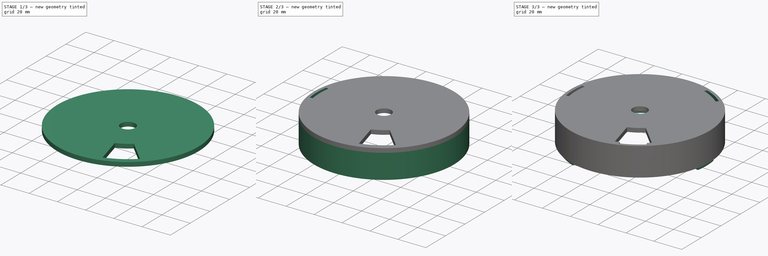
[diagram: build sequence overview — one tinted view per stage of 3, left to right]
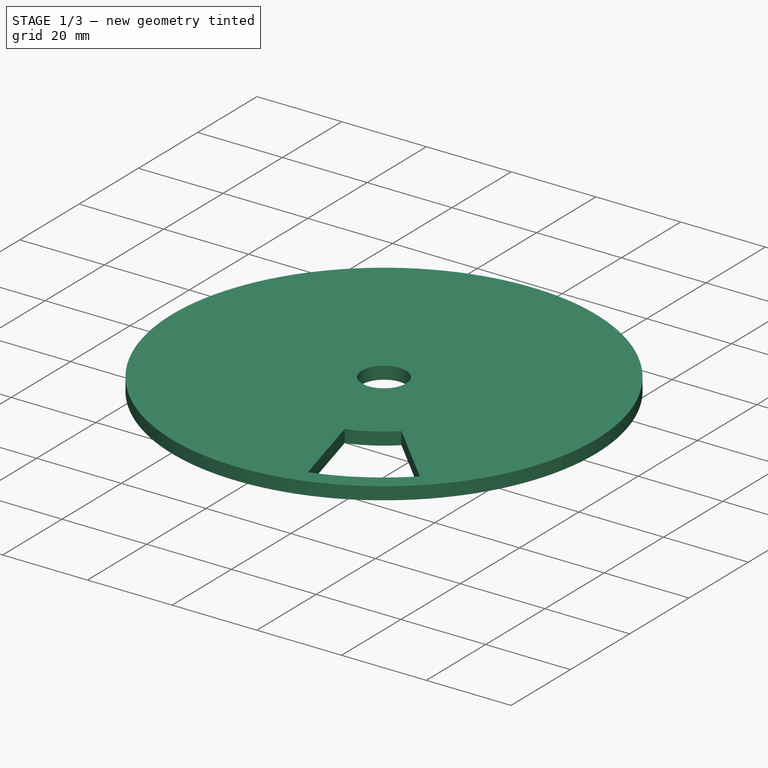
[diagram: stage 1 of 3 — iso view after this stage's code; geometry added in this stage tinted green]
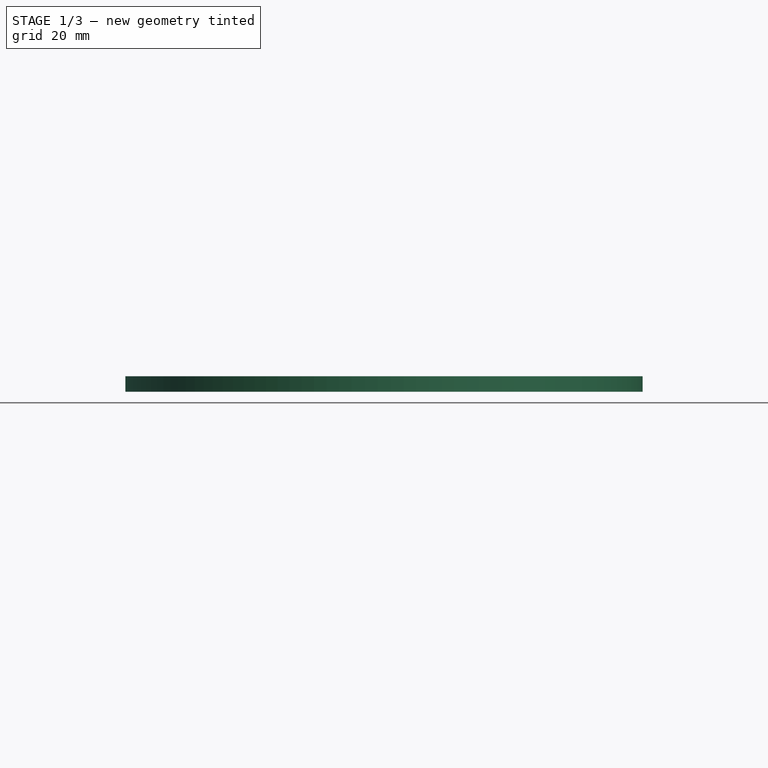
[diagram: stage 1 of 3 — front view after this stage's code; geometry added in this stage tinted green]
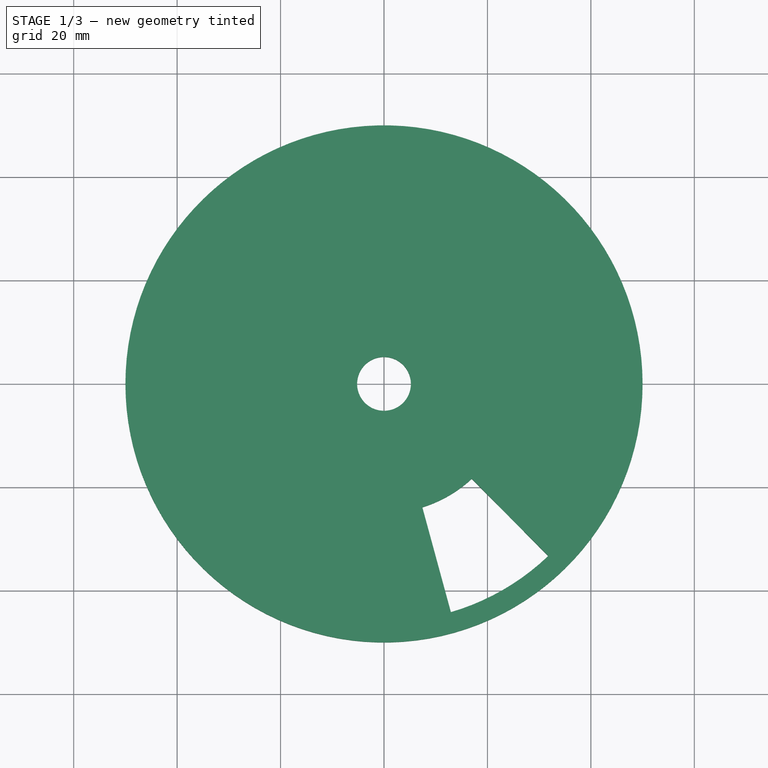
[diagram: stage 1 of 3 — top view after this stage's code; geometry added in this stage tinted green]
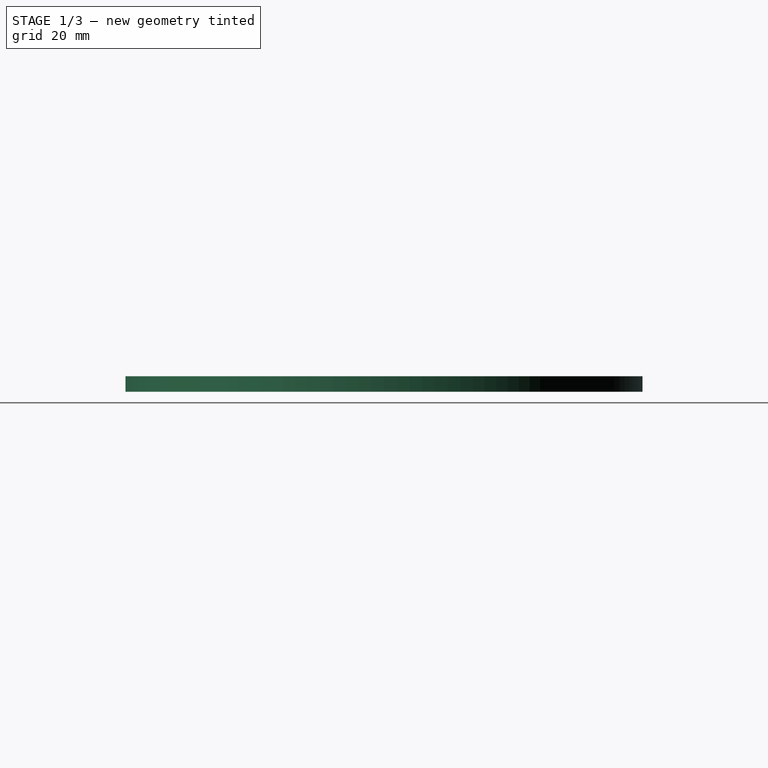
[diagram: stage 1 of 3 — right view after this stage's code; geometry added in this stage tinted green]
FCSTD DOCUMENT  (FreeCAD 0.20R29603 (Git))
Label: Section2
License: All rights reserved
LicenseURL: http://en.wikipedia.org/wiki/All_rights_reserved
objects: Sketcher::SketchObject×6, PartDesign::Pad×3, PartDesign::Plane×3, PartDesign::Pocket×3, PartDesign::PolarPattern×2, PartDesign::Body×1
note: 24 computed .brp shape members not serialized (recipe doc carries the construction recipe); baked Part::Feature solids carry a one-line shape summary decoded from their .brp

FEATURE [Sketcher::SketchObject] Sketch
  FullyConstrained = true
  MapMode = 5
  Support = -> [XY_Plane]
  sketch-geometry (1):
    g0: Circle CenterX=0 CenterY=0 CenterZ=0 NormalX=0 NormalY=0 NormalZ=1 AngleXU=0 Radius=50
  constraints (2):
    c: Coincident(g0,g-1)
    c: Diameter(g0) = 100
FEATURE [PartDesign::Pad] Pad
  Direction = (0,0,1)
  Length = 3
  Length2 = 10
  Profile = -> Sketch
  ReferenceAxis = -> Sketch [N_Axis]
  Type = 0
FEATURE [PartDesign::Plane] DatumPlane
  AttachmentOffset = pos=(0,0,11.5) rot=(0,0,1;0rad)
  Length = 60
  MapMode = 5
  Placement = pos=(11.5,-2.6e-15,2.6e-15) rot=(0.57735,0.57735,0.57735;2.0944rad)
  ResizeMode = 0
  Support = -> [YZ_Plane]
  Width = 60
FEATURE [PartDesign::Plane] DatumPlane001
  AttachmentOffset = pos=(0,0,3) rot=(0,0,1;0rad)
  Length = 85.0765
  MapMode = 5
  Placement = pos=(0,0,3) rot=(0,0,1;0rad)
  ResizeMode = 0
  Support = -> [XY_Plane]
  Width = 62.0825
FEATURE [Sketcher::SketchObject] Sketch004
  FullyConstrained = true
  MapMode = 5
  Placement = pos=(0,0,3) rot=(0,0,1;0rad)
  Support = -> [DatumPlane001]
  sketch-geometry (1):
    g0: Circle CenterX=0 CenterY=0 CenterZ=0 NormalX=0 NormalY=0 NormalZ=1 AngleXU=0 Radius=5.2
  constraints (2):
    c: Coincident(g0,g-1)
    c: Diameter(g0) = 10.4
FEATURE [PartDesign::Pocket] Pocket001
  BaseFeature = -> Pad
  Direction = (0,0,-1)
  Length = 5
  Length2 = 5
  Profile = -> Sketch004
  ReferenceAxis = -> Sketch004 [N_Axis]
  Type = 1
FEATURE [Sketcher::SketchObject] Sketch005
  FullyConstrained = false
  MapMode = 5
  Support = -> [XY_Plane]
  sketch-geometry (8):
    g0: ArcOfCircle CenterX=0 CenterY=0 CenterZ=0 NormalX=0 NormalY=0 NormalZ=1 AngleXU=0 Radius=46 StartAngle=4.99752 EndAngle=5.47446
    g1: LineSegment StartX=16.97 StartY=-18.3581 StartZ=0 EndX=31.7592 EndY=-33.2769 EndZ=0
    g2: LineSegment StartX=12.939 StartY=-44.1427 StartZ=0 EndX=7.41354 EndY=-23.8755 EndZ=0
    g3: LineSegment StartX=31.7592 StartY=-33.2769 StartZ=0 EndX=12.939 EndY=-44.1427 EndZ=0
    g4: ArcOfCircle CenterX=0 CenterY=0 CenterZ=0 NormalX=0 NormalY=0 NormalZ=1 AngleXU=0 Radius=25 StartAngle=5.01346 EndAngle=5.45852
    g5: LineSegment StartX=0 StartY=0 StartZ=0 EndX=16.97 EndY=-18.3581 EndZ=0
    g6: LineSegment StartX=16.97 StartY=-18.3581 StartZ=0 EndX=7.41354 EndY=-23.8755 EndZ=0
    g7: LineSegment StartX=0 StartY=0 StartZ=0 EndX=40.2922 EndY=-69.7882 EndZ=0
  constraints (20):
    c: Coincident(g0,g-1)
    c: Radius(g0) = 46
    c: Coincident(g1,g0)
    c: Coincident(g2,g0)
    c: Angle(g2,g1) = 0.514872
    c: Coincident(g3,g0)
    c: Coincident(g3,g0)
    c: Coincident(g4,g0)
    c: Coincident(g1,g4)
    c: Coincident(g2,g4)
    c: Coincident(g5,g0)
    c: Coincident(g5,g1)
    c: Distance(g5) = 25
    c: Coincident(g6,g1)
    c: Coincident(g6,g2)
    c: Angle(g4) = 0.445059
    c: Coincident(g7,g0)
    c: Perpendicular(g7,g3)
    c: Perpendicular(g7,g6)
    c: Angle(g7,g-1) = 1.0472
FEATURE [PartDesign::Pocket] Pocket002
  BaseFeature = -> Pocket001
  Direction = (0,0,-1)
  Length = 5
  Length2 = 5
  Profile = -> Sketch005
  ReferenceAxis = -> Sketch005 [N_Axis]
  Reversed = true
  Type = 1
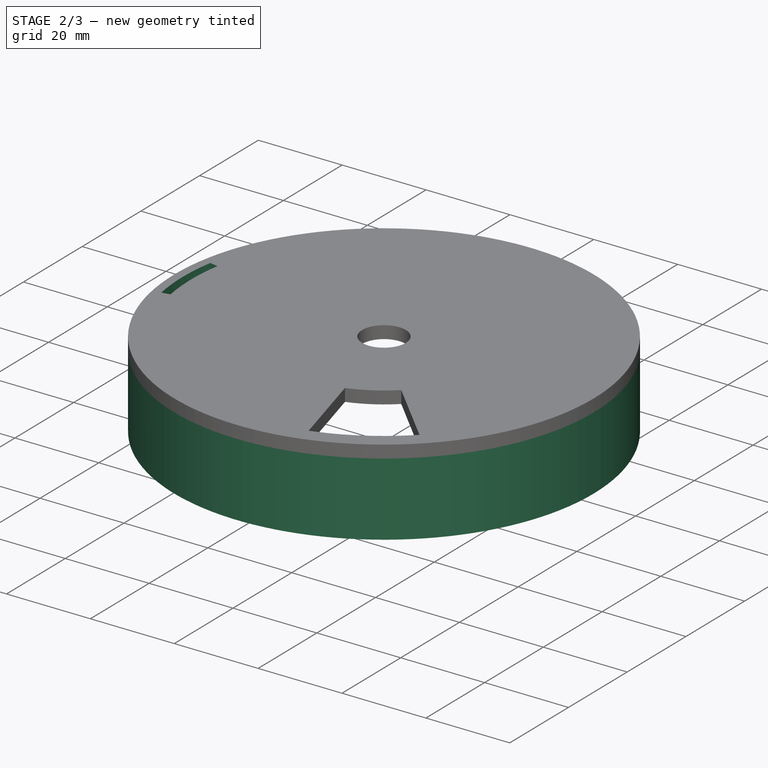
[diagram: stage 2 of 3 — iso view after this stage's code; geometry added in this stage tinted green]
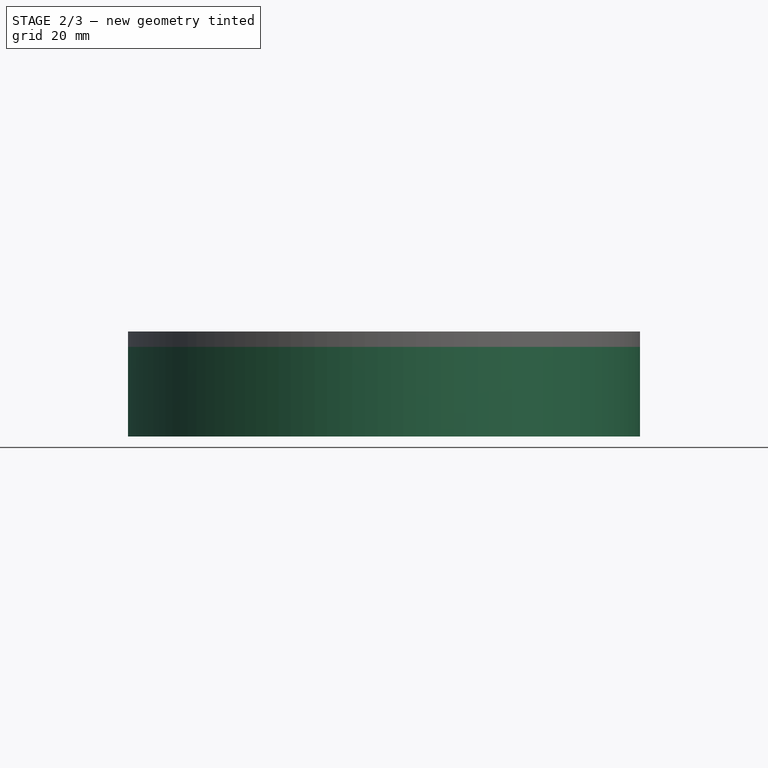
[diagram: stage 2 of 3 — front view after this stage's code; geometry added in this stage tinted green]
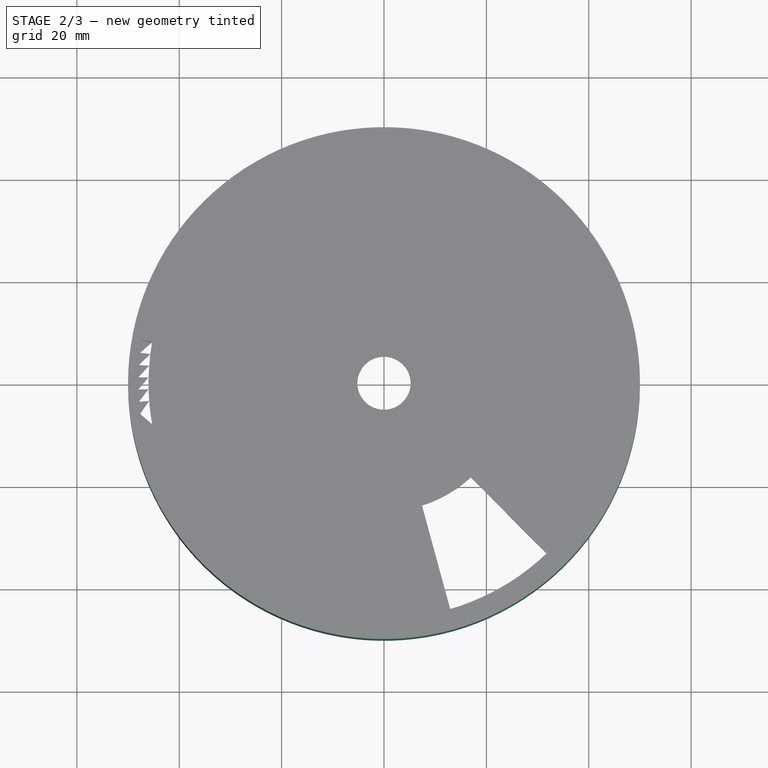
[diagram: stage 2 of 3 — top view after this stage's code; geometry added in this stage tinted green]
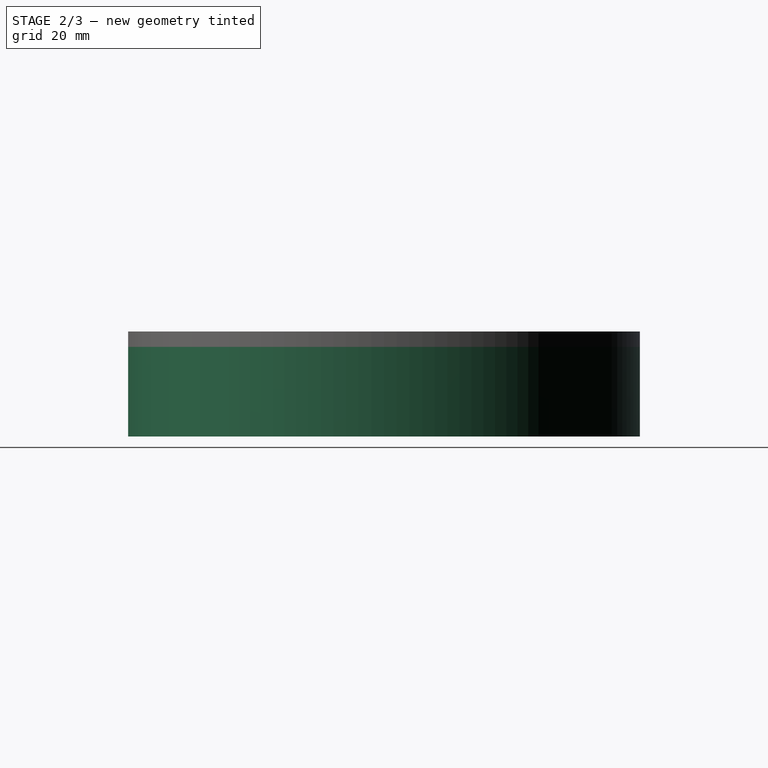
[diagram: stage 2 of 3 — right view after this stage's code; geometry added in this stage tinted green]
FEATURE [Sketcher::SketchObject] Sketch006
  FullyConstrained = true
  MapMode = 5
  Support = -> [XY_Plane]
  sketch-geometry (2):
    g0: Circle CenterX=0 CenterY=0 CenterZ=0 NormalX=0 NormalY=0 NormalZ=1 AngleXU=0 Radius=50
    g1: Circle CenterX=0 CenterY=0 CenterZ=0 NormalX=0 NormalY=0 NormalZ=1 AngleXU=0 Radius=46
  constraints (4):
    c: Coincident(g0,g-1)
    c: Diameter(g0) = 100
    c: Coincident(g1,g0)
    c: Diameter(g1) = 92
FEATURE [PartDesign::Pad] Pad001
  BaseFeature = -> Pocket002
  Direction = (0,0,1)
  Length = 17.5
  Length2 = 10
  Profile = -> Sketch006
  ReferenceAxis = -> Sketch006 [N_Axis]
  Reversed = true
  Type = 0
FEATURE [Sketcher::SketchObject] Sketch007
  FullyConstrained = true
  MapMode = 5
  Placement = pos=(0,0,3) rot=(0,0,1;0rad)
  Support = -> [DatumPlane001]
  sketch-geometry (5):
    g0: ArcOfCircle CenterX=0 CenterY=0 CenterZ=0 NormalX=0 NormalY=0 NormalZ=1 AngleXU=0 Radius=46 StartAngle=2.96706 EndAngle=3.31613
    g1: ArcOfCircle CenterX=0 CenterY=0 CenterZ=0 NormalX=0 NormalY=0 NormalZ=1 AngleXU=0 Radius=48 StartAngle=2.96706 EndAngle=3.31613
    g2: LineSegment StartX=-47.2708 StartY=8.33511 StartZ=0 EndX=-45.3012 EndY=7.98782 EndZ=0
    g3: LineSegment StartX=-45.3012 StartY=-7.98782 StartZ=0 EndX=-47.2708 EndY=-8.33511 EndZ=0
    g4: LineSegment StartX=-45.3012 StartY=-7.98782 StartZ=0 EndX=-45.3012 EndY=7.98782 EndZ=0
  constraints (14):
    c: Coincident(g0,g-1)
    c: Coincident(g1,g0)
    c: Coincident(g2,g1)
    c: Coincident(g2,g0)
    c: Coincident(g3,g0)
    c: Coincident(g3,g1)
    c: Perpendicular(g0,g3)
    c: Perpendicular(g0,g2)
    c: Angle(g0) = 0.349066
    c: Distance(g2) = 2
    c: Radius(g0) = 46
    c: Coincident(g4,g0)
    c: Coincident(g4,g0)
    c: Perpendicular(g4,g-1)
FEATURE [PartDesign::Plane] DatumPlane002
  AttachmentOffset = pos=(0,0,-17.5) rot=(0,0,1;0rad)
  Length = 85.0765
  MapMode = 5
  Placement = pos=(0,0,-17.5) rot=(0,0,1;0rad)
  ResizeMode = 0
  Support = -> [XY_Plane]
  Width = 62.0825
FEATURE [Sketcher::SketchObject] Sketch008
  FullyConstrained = true
  MapMode = 5
  Placement = pos=(0,0,-17.5) rot=(0,0,1;0rad)
  Support = -> [DatumPlane002]
  sketch-geometry (5):
    g0: ArcOfCircle CenterX=0 CenterY=0 CenterZ=0 NormalX=0 NormalY=0 NormalZ=1 AngleXU=0 Radius=46 StartAngle=6.11738 EndAngle=6.44899
    g1: ArcOfCircle CenterX=0 CenterY=0 CenterZ=0 NormalX=0 NormalY=0 NormalZ=1 AngleXU=0 Radius=47.8 StartAngle=6.11738 EndAngle=6.44899
    g2: LineSegment StartX=45.3691 StartY=-7.59219 StartZ=0 EndX=47.1445 EndY=-7.88928 EndZ=0
    g3: LineSegment StartX=47.1445 StartY=7.88928 StartZ=0 EndX=45.3691 EndY=7.59219 EndZ=0
    g4: LineSegment StartX=45.3691 StartY=-7.59219 StartZ=0 EndX=45.3691 EndY=7.59219 EndZ=0
  constraints (14):
    c: Coincident(g0,g-1)
    c: Angle(g0) = 0.331613
    c: Radius(g0) = 46
    c: Coincident(g1,g0)
    c: Coincident(g2,g0)
    c: Coincident(g2,g1)
    c: Coincident(g3,g1)
    c: Coincident(g3,g0)
    c: Perpendicular(g1,g3)
    c: Perpendicular(g1,g2)
    c: Distance(g3) = 1.8
    c: Coincident(g4,g0)
    c: Coincident(g4,g0)
    c: Vertical(g4)
FEATURE [PartDesign::Pocket] Pocket003
  BaseFeature = -> Pad001
  Direction = (0,0,-1)
  Length = 3
  Length2 = 5
  Profile = -> Sketch007
  ReferenceAxis = -> Sketch007 [N_Axis]
  Type = 0
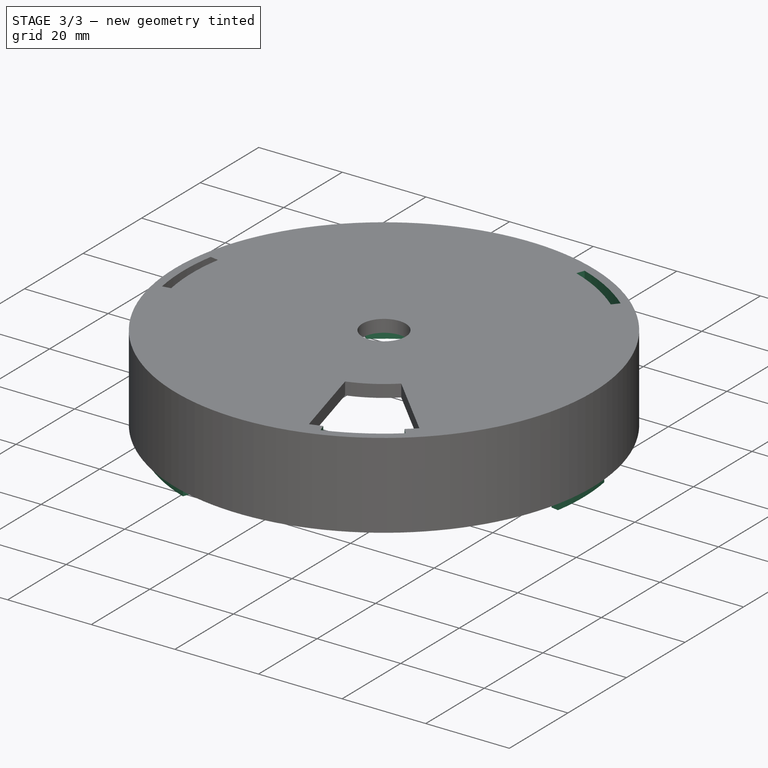
[diagram: stage 3 of 3 — iso view after this stage's code; geometry added in this stage tinted green]
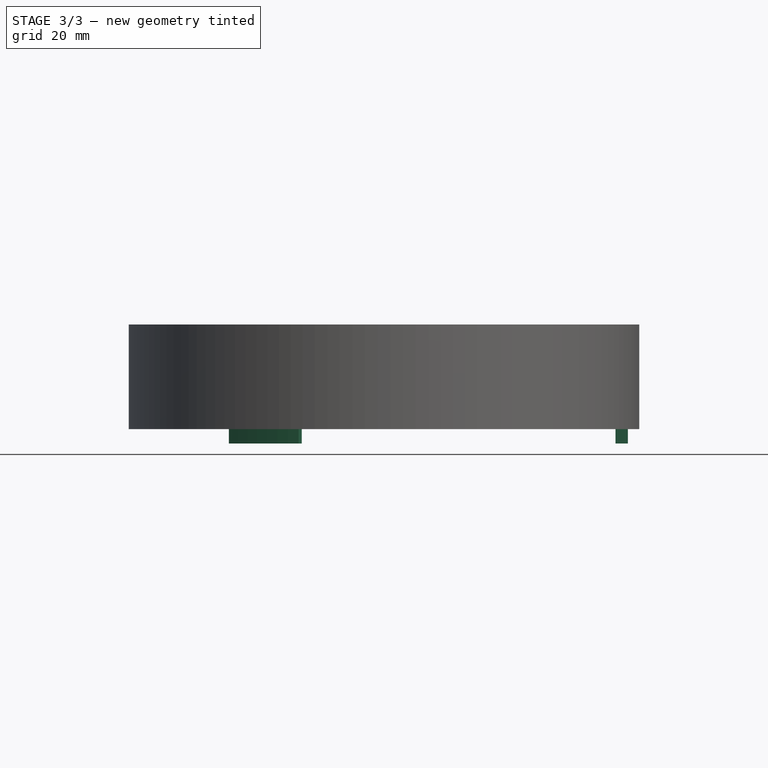
[diagram: stage 3 of 3 — front view after this stage's code; geometry added in this stage tinted green]
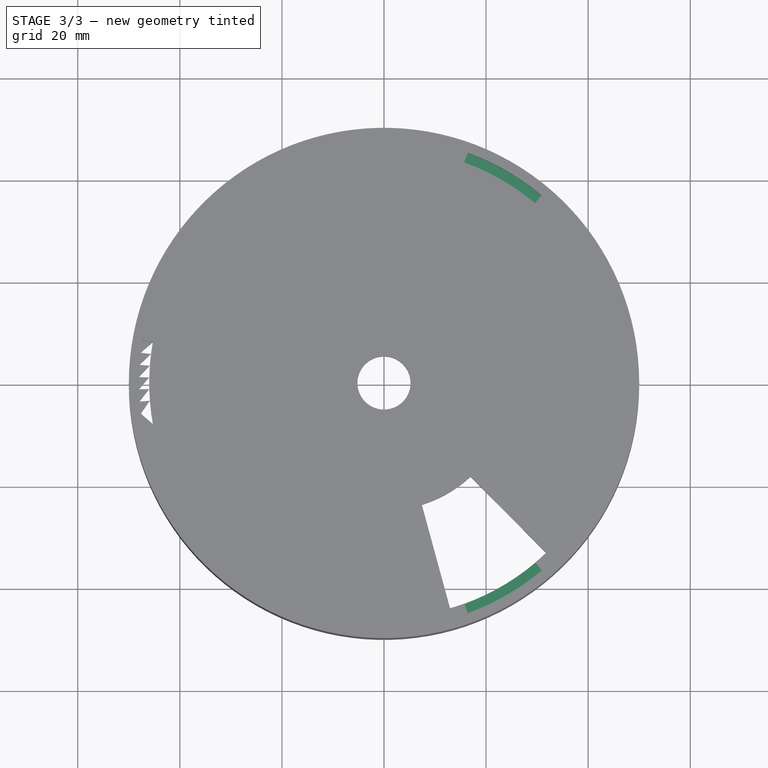
[diagram: stage 3 of 3 — top view after this stage's code; geometry added in this stage tinted green]
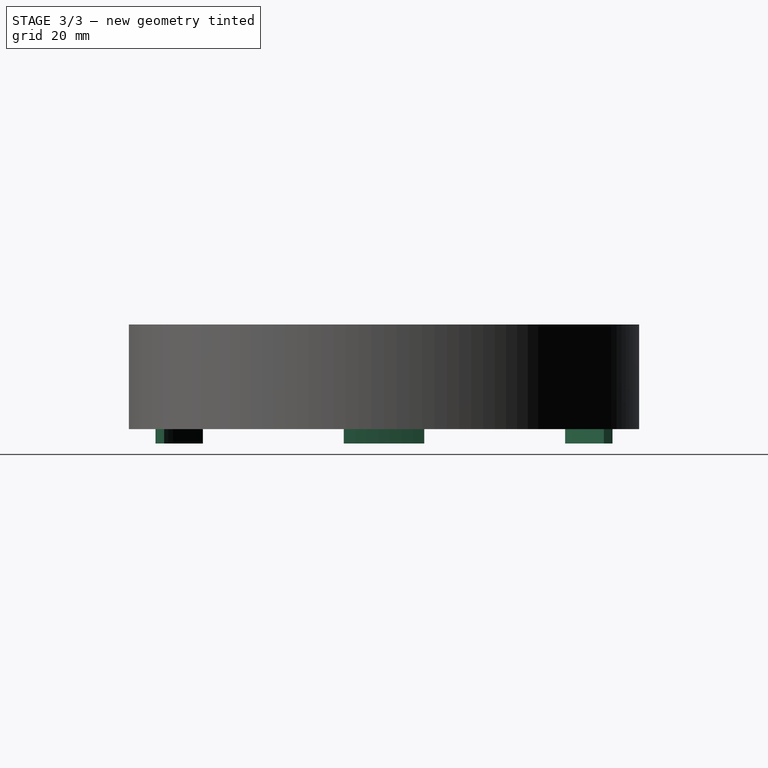
[diagram: stage 3 of 3 — right view after this stage's code; geometry added in this stage tinted green]
FEATURE [PartDesign::PolarPattern] PolarPattern001
  Angle = 360
  Axis = -> Sketch007 [N_Axis]
  BaseFeature = -> Pocket003
  Occurrences = 3
  Originals = -> [Pocket003]
FEATURE [PartDesign::Pad] Pad002
  BaseFeature = -> PolarPattern001
  Direction = (0,0,1)
  Length = 2.8
  Length2 = 10
  Profile = -> Sketch008
  ReferenceAxis = -> Sketch008 [N_Axis]
  Reversed = true
  Type = 0
FEATURE [PartDesign::PolarPattern] PolarPattern002
  Angle = 360
  Axis = -> Sketch008 [N_Axis]
  BaseFeature = -> Pad002
  Occurrences = 3
  Originals = -> [Pad002]
FEATURE [PartDesign::Body] Body
  Group = -> [Sketch,Pad,DatumPlane,DatumPlane001,Sketch004,Pocket001,Sketch005,Pocket002,Sketch006,Pad001,Sketch007,Pocket003,PolarPattern001,DatumPlane002,Sketch008,Pad002,PolarPattern002]
  Origin = -> Origin
  Tip = -> PolarPattern002
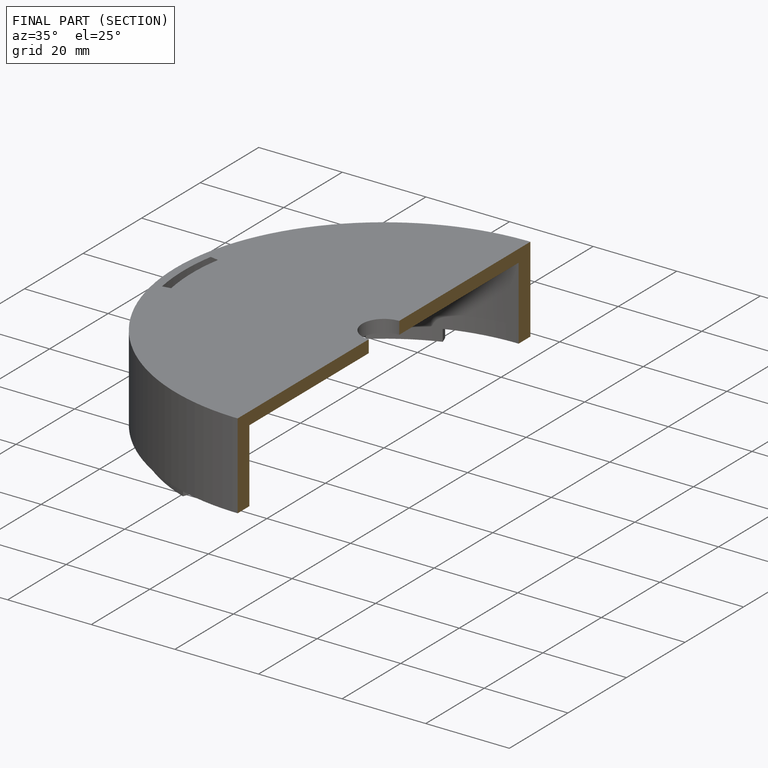
[diagram: finished part — half-section view (interior)]
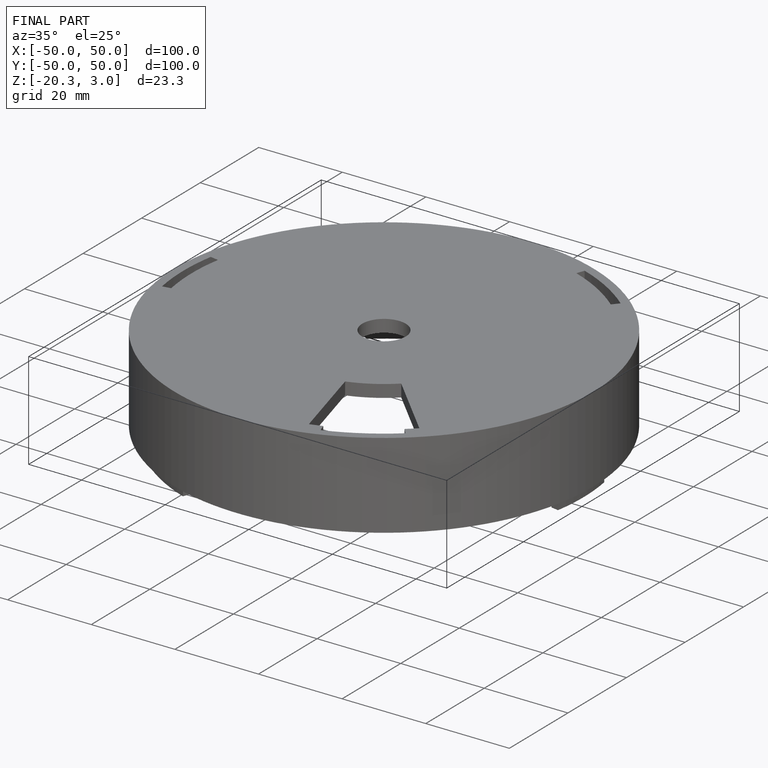
[diagram: finished part — iso view with bounding-box wireframe]
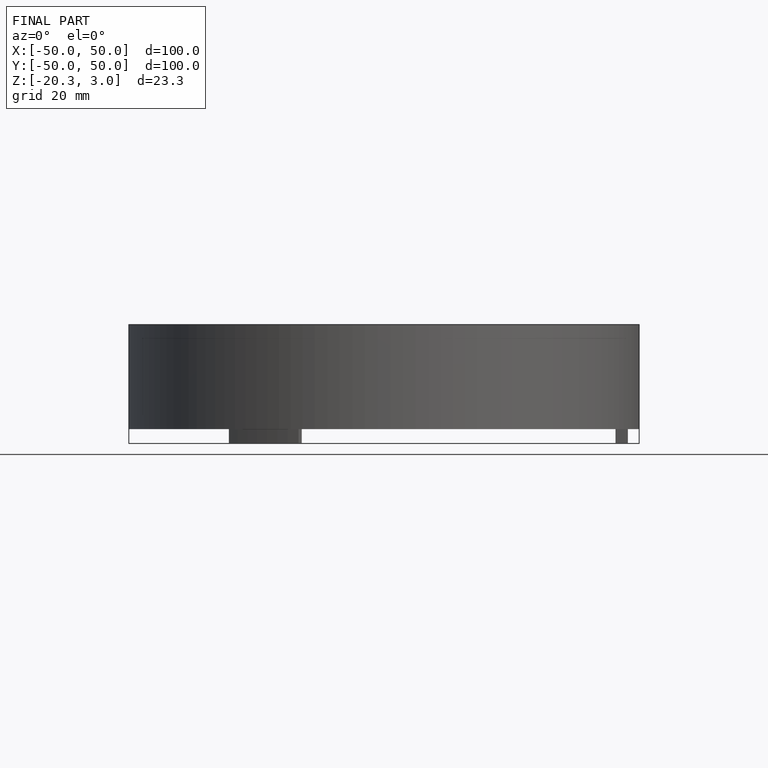
[diagram: finished part — front view with bounding-box wireframe]
